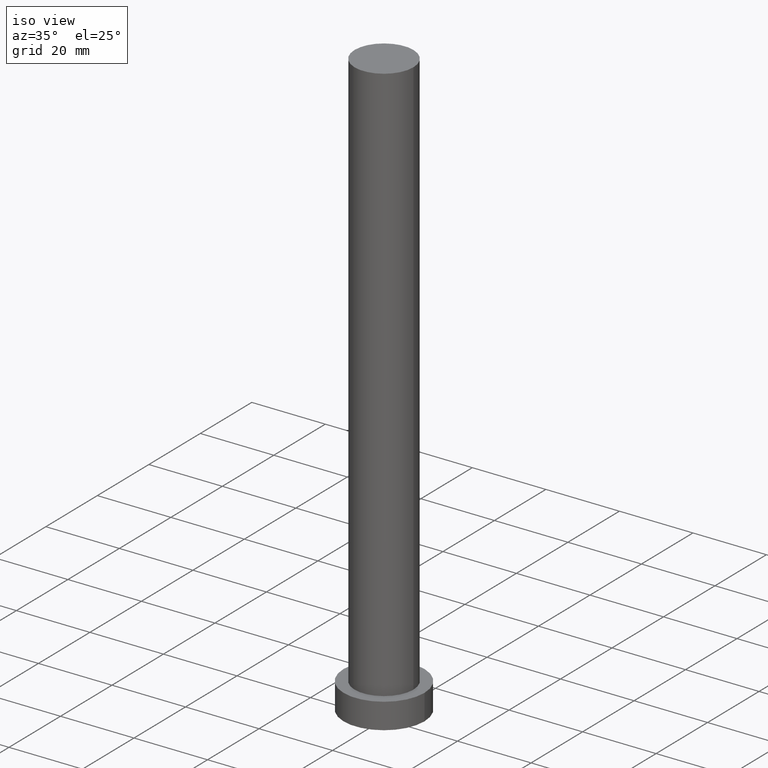
[diagram: clean part render]
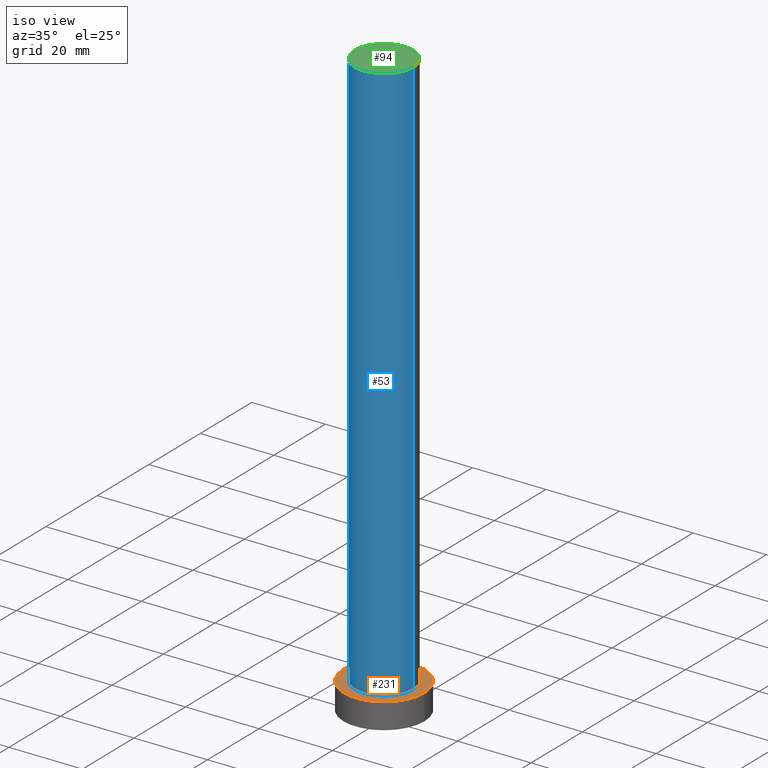
[diagram: same view with three faces highlighted in distinct colors, each labeled with its STEP entity id]
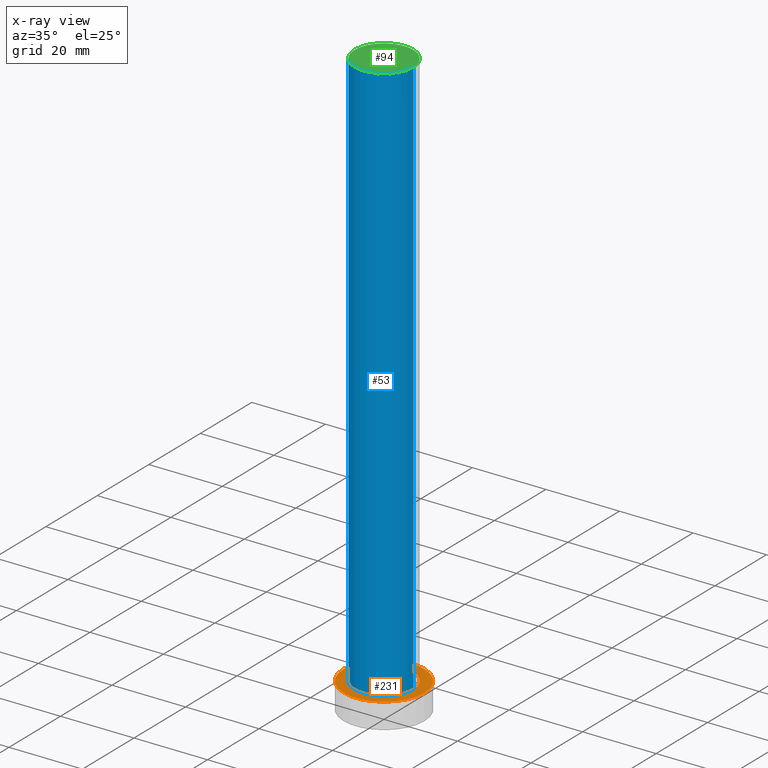
[diagram: x-ray of the same camera — body ghosted, the three highlighted faces saturated]
A machine part, iso view with three faces highlighted in distinct colors.
The next image is the same camera in x-ray (body ghosted, the three faces saturated) — at least one of them is partly hidden behind the body in this view.
Their STEP definitions:

[orange] entity #231 — the highlighted planar face has unit normal (0, 0, 1).
#8 = CARTESIAN_POINT ( 'NONE',  ( 0.000000000000000000, 0.000000000000000000, 7.000000000000000000 ) ) ;
#16 = AXIS2_PLACEMENT_3D ( 'NONE', #8, #132, #75 ) ;
#19 = CIRCLE ( 'NONE', #79, 11.00000000000000000 ) ;
#39 = VERTEX_POINT ( 'NONE', #107 ) ;
#52 = DIRECTION ( 'NONE',  ( 0.000000000000000000, 0.000000000000000000, 1.000000000000000000 ) ) ;
#60 = ORIENTED_EDGE ( 'NONE', *, *, #77, .F. ) ;
#67 = CIRCLE ( 'NONE', #165, 11.00000000000000000 ) ;
#73 = PLANE ( 'NONE',  #109 ) ;
#75 = DIRECTION ( 'NONE',  ( 1.000000000000000000, 0.000000000000000000, 0.000000000000000000 ) ) ;
#76 = CARTESIAN_POINT ( 'NONE',  ( 0.000000000000000000, 0.000000000000000000, 7.000000000000000000 ) ) ;
#77 = EDGE_CURVE ( 'NONE', #39, #201, #98, .T. ) ;
#79 = AXIS2_PLACEMENT_3D ( 'NONE', #170, #52, #145 ) ;
#81 = ORIENTED_EDGE ( 'NONE', *, *, #163, .T. ) ;
#88 = CIRCLE ( 'NONE', #219, 8.000000000000000000 ) ;
#90 = CARTESIAN_POINT ( 'NONE',  ( -11.00000000000000000, 0.000000000000000000, 7.000000000000000000 ) ) ;
#91 = DIRECTION ( 'NONE',  ( 0.000000000000000000, 0.000000000000000000, 1.000000000000000000 ) ) ;
#93 = CARTESIAN_POINT ( 'NONE',  ( 8.000000000000000000, 9.797174393178825657E-16, 7.000000000000000000 ) ) ;
#98 = CIRCLE ( 'NONE', #16, 8.000000000000000000 ) ;
#99 = VERTEX_POINT ( 'NONE', #90 ) ;
#100 = EDGE_LOOP ( 'NONE', ( #217, #81 ) ) ;
#107 = CARTESIAN_POINT ( 'NONE',  ( -8.000000000000000000, 0.000000000000000000, 7.000000000000000000 ) ) ;
#109 = AXIS2_PLACEMENT_3D ( 'NONE', #148, #91, #226 ) ;
#110 = FACE_BOUND ( 'NONE', #199, .T. ) ;
#129 = CARTESIAN_POINT ( 'NONE',  ( 0.000000000000000000, 0.000000000000000000, 7.000000000000000000 ) ) ;
#132 = DIRECTION ( 'NONE',  ( 0.000000000000000000, 0.000000000000000000, 1.000000000000000000 ) ) ;
#145 = DIRECTION ( 'NONE',  ( 1.000000000000000000, 0.000000000000000000, 0.000000000000000000 ) ) ;
#147 = EDGE_CURVE ( 'NONE', #99, #162, #67, .T. ) ;
#148 = CARTESIAN_POINT ( 'NONE',  ( 0.000000000000000000, 0.000000000000000000, 7.000000000000000000 ) ) ;
#149 = CARTESIAN_POINT ( 'NONE',  ( 11.00000000000000000, 1.347111479062088405E-15, 7.000000000000000000 ) ) ;
#150 = DIRECTION ( 'NONE',  ( 0.000000000000000000, 0.000000000000000000, 1.000000000000000000 ) ) ;
#155 = ORIENTED_EDGE ( 'NONE', *, *, #171, .F. ) ;
#162 = VERTEX_POINT ( 'NONE', #149 ) ;
#163 = EDGE_CURVE ( 'NONE', #162, #99, #19, .T. ) ;
#165 = AXIS2_PLACEMENT_3D ( 'NONE', #129, #150, #166 ) ;
#166 = DIRECTION ( 'NONE',  ( 1.000000000000000000, 0.000000000000000000, 0.000000000000000000 ) ) ;
#170 = CARTESIAN_POINT ( 'NONE',  ( 0.000000000000000000, 0.000000000000000000, 7.000000000000000000 ) ) ;
#171 = EDGE_CURVE ( 'NONE', #201, #39, #88, .T. ) ;
#190 = FACE_OUTER_BOUND ( 'NONE', #100, .T. ) ;
#199 = EDGE_LOOP ( 'NONE', ( #60, #155 ) ) ;
#201 = VERTEX_POINT ( 'NONE', #93 ) ;
#210 = DIRECTION ( 'NONE',  ( 1.000000000000000000, 0.000000000000000000, 0.000000000000000000 ) ) ;
#217 = ORIENTED_EDGE ( 'NONE', *, *, #147, .T. ) ;
#219 = AXIS2_PLACEMENT_3D ( 'NONE', #76, #224, #210 ) ;
#224 = DIRECTION ( 'NONE',  ( 0.000000000000000000, 0.000000000000000000, 1.000000000000000000 ) ) ;
#226 = DIRECTION ( 'NONE',  ( 1.000000000000000000, 0.000000000000000000, -0.000000000000000000 ) ) ;
#231 = ADVANCED_FACE ( 'NONE', ( #110, #190 ), #73, .T. ) ;

[blue] entity #53 — the highlighted cylindrical surface (edge-blend (fillet) strip) has radius 8 mm, axis along (-0, -0, -1).
#2 = EDGE_CURVE ( 'NONE', #136, #14, #25, .T. ) ;
#8 = CARTESIAN_POINT ( 'NONE',  ( 0.000000000000000000, 0.000000000000000000, 7.000000000000000000 ) ) ;
#12 = LINE ( 'NONE', #80, #158 ) ;
#14 = VERTEX_POINT ( 'NONE', #41 ) ;
#16 = AXIS2_PLACEMENT_3D ( 'NONE', #8, #132, #75 ) ;
#25 = CIRCLE ( 'NONE', #130, 8.000000000000000000 ) ;
#35 = ORIENTED_EDGE ( 'NONE', *, *, #2, .F. ) ;
#39 = VERTEX_POINT ( 'NONE', #107 ) ;
#41 = CARTESIAN_POINT ( 'NONE',  ( 8.000000000000000000, 9.797174393178825657E-16, 160.0000000000000000 ) ) ;
#47 = DIRECTION ( 'NONE',  ( 1.000000000000000000, 0.000000000000000000, 0.000000000000000000 ) ) ;
#53 = ADVANCED_FACE ( 'NONE', ( #83 ), #61, .T. ) ;
#55 = CARTESIAN_POINT ( 'NONE',  ( 0.000000000000000000, 0.000000000000000000, 160.0000000000000000 ) ) ;
#59 = ORIENTED_EDGE ( 'NONE', *, *, #70, .T. ) ;
#61 = CYLINDRICAL_SURFACE ( 'NONE', #122, 8.000000000000000000 ) ;
#70 = EDGE_CURVE ( 'NONE', #136, #39, #235, .T. ) ;
#72 = VECTOR ( 'NONE', #168, 1000.000000000000000 ) ;
#75 = DIRECTION ( 'NONE',  ( 1.000000000000000000, 0.000000000000000000, 0.000000000000000000 ) ) ;
#77 = EDGE_CURVE ( 'NONE', #39, #201, #98, .T. ) ;
#80 = CARTESIAN_POINT ( 'NONE',  ( 8.000000000000000000, 9.797174393178825657E-16, 160.0000000000000000 ) ) ;
#83 = FACE_OUTER_BOUND ( 'NONE', #213, .T. ) ;
#93 = CARTESIAN_POINT ( 'NONE',  ( 8.000000000000000000, 9.797174393178825657E-16, 7.000000000000000000 ) ) ;
#98 = CIRCLE ( 'NONE', #16, 8.000000000000000000 ) ;
#105 = CARTESIAN_POINT ( 'NONE',  ( 0.000000000000000000, 0.000000000000000000, 160.0000000000000000 ) ) ;
#107 = CARTESIAN_POINT ( 'NONE',  ( -8.000000000000000000, 0.000000000000000000, 7.000000000000000000 ) ) ;
#120 = DIRECTION ( 'NONE',  ( -0.000000000000000000, -0.000000000000000000, -1.000000000000000000 ) ) ;
#122 = AXIS2_PLACEMENT_3D ( 'NONE', #55, #174, #250 ) ;
#130 = AXIS2_PLACEMENT_3D ( 'NONE', #105, #215, #47 ) ;
#131 = CARTESIAN_POINT ( 'NONE',  ( -8.000000000000000000, 0.000000000000000000, 160.0000000000000000 ) ) ;
#132 = DIRECTION ( 'NONE',  ( 0.000000000000000000, 0.000000000000000000, 1.000000000000000000 ) ) ;
#135 = CARTESIAN_POINT ( 'NONE',  ( -8.000000000000000000, 0.000000000000000000, 160.0000000000000000 ) ) ;
#136 = VERTEX_POINT ( 'NONE', #131 ) ;
#138 = ORIENTED_EDGE ( 'NONE', *, *, #253, .F. ) ;
#158 = VECTOR ( 'NONE', #120, 1000.000000000000000 ) ;
#168 = DIRECTION ( 'NONE',  ( -0.000000000000000000, -0.000000000000000000, -1.000000000000000000 ) ) ;
#174 = DIRECTION ( 'NONE',  ( -0.000000000000000000, -0.000000000000000000, -1.000000000000000000 ) ) ;
#177 = ORIENTED_EDGE ( 'NONE', *, *, #77, .T. ) ;
#201 = VERTEX_POINT ( 'NONE', #93 ) ;
#213 = EDGE_LOOP ( 'NONE', ( #138, #35, #59, #177 ) ) ;
#215 = DIRECTION ( 'NONE',  ( 0.000000000000000000, 0.000000000000000000, 1.000000000000000000 ) ) ;
#235 = LINE ( 'NONE', #135, #72 ) ;
#250 = DIRECTION ( 'NONE',  ( -1.000000000000000000, 0.000000000000000000, 0.000000000000000000 ) ) ;
#253 = EDGE_CURVE ( 'NONE', #14, #201, #12, .T. ) ;

[green] entity #94 — the highlighted planar face has unit normal (0, 0, 1).
#2 = EDGE_CURVE ( 'NONE', #136, #14, #25, .T. ) ;
#5 = DIRECTION ( 'NONE',  ( 0.000000000000000000, 0.000000000000000000, 1.000000000000000000 ) ) ;
#14 = VERTEX_POINT ( 'NONE', #41 ) ;
#25 = CIRCLE ( 'NONE', #130, 8.000000000000000000 ) ;
#29 = PLANE ( 'NONE',  #116 ) ;
#37 = EDGE_LOOP ( 'NONE', ( #236, #234 ) ) ;
#41 = CARTESIAN_POINT ( 'NONE',  ( 8.000000000000000000, 9.797174393178825657E-16, 160.0000000000000000 ) ) ;
#47 = DIRECTION ( 'NONE',  ( 1.000000000000000000, 0.000000000000000000, 0.000000000000000000 ) ) ;
#54 = DIRECTION ( 'NONE',  ( 1.000000000000000000, 0.000000000000000000, 0.000000000000000000 ) ) ;
#86 = EDGE_CURVE ( 'NONE', #14, #136, #194, .T. ) ;
#89 = DIRECTION ( 'NONE',  ( 0.000000000000000000, 0.000000000000000000, 1.000000000000000000 ) ) ;
#94 = ADVANCED_FACE ( 'NONE', ( #193 ), #29, .T. ) ;
#105 = CARTESIAN_POINT ( 'NONE',  ( 0.000000000000000000, 0.000000000000000000, 160.0000000000000000 ) ) ;
#114 = CARTESIAN_POINT ( 'NONE',  ( 0.000000000000000000, 0.000000000000000000, 160.0000000000000000 ) ) ;
#115 = CARTESIAN_POINT ( 'NONE',  ( 0.000000000000000000, 0.000000000000000000, 160.0000000000000000 ) ) ;
#116 = AXIS2_PLACEMENT_3D ( 'NONE', #115, #5, #245 ) ;
#130 = AXIS2_PLACEMENT_3D ( 'NONE', #105, #215, #47 ) ;
#131 = CARTESIAN_POINT ( 'NONE',  ( -8.000000000000000000, 0.000000000000000000, 160.0000000000000000 ) ) ;
#136 = VERTEX_POINT ( 'NONE', #131 ) ;
#193 = FACE_OUTER_BOUND ( 'NONE', #37, .T. ) ;
#194 = CIRCLE ( 'NONE', #228, 8.000000000000000000 ) ;
#215 = DIRECTION ( 'NONE',  ( 0.000000000000000000, 0.000000000000000000, 1.000000000000000000 ) ) ;
#228 = AXIS2_PLACEMENT_3D ( 'NONE', #114, #89, #54 ) ;
#234 = ORIENTED_EDGE ( 'NONE', *, *, #86, .T. ) ;
#236 = ORIENTED_EDGE ( 'NONE', *, *, #2, .T. ) ;
#245 = DIRECTION ( 'NONE',  ( 1.000000000000000000, 0.000000000000000000, -0.000000000000000000 ) ) ;